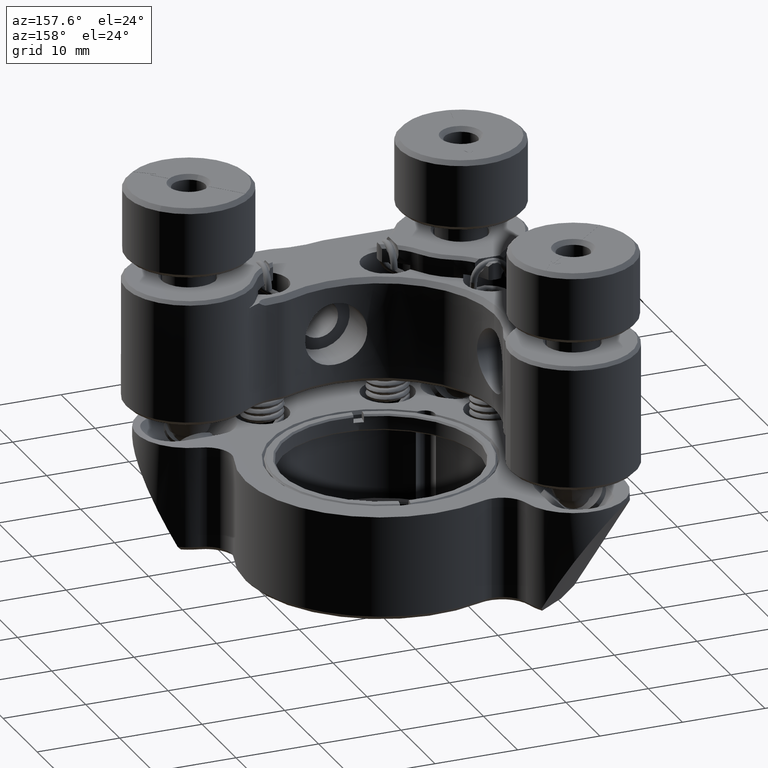
[diagram: clean part render]
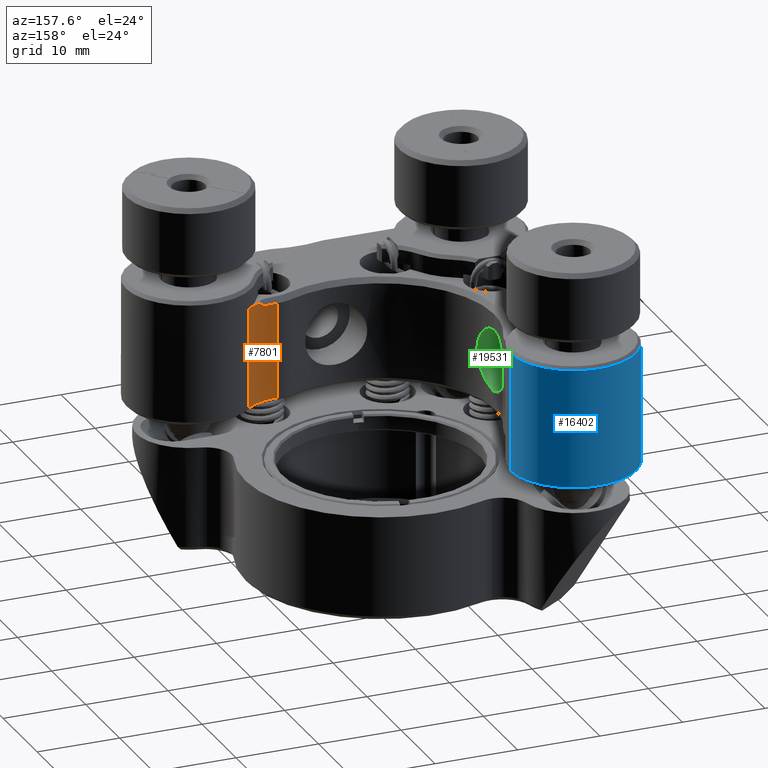
[diagram: same view with three faces highlighted in distinct colors, each labeled with its STEP entity id]
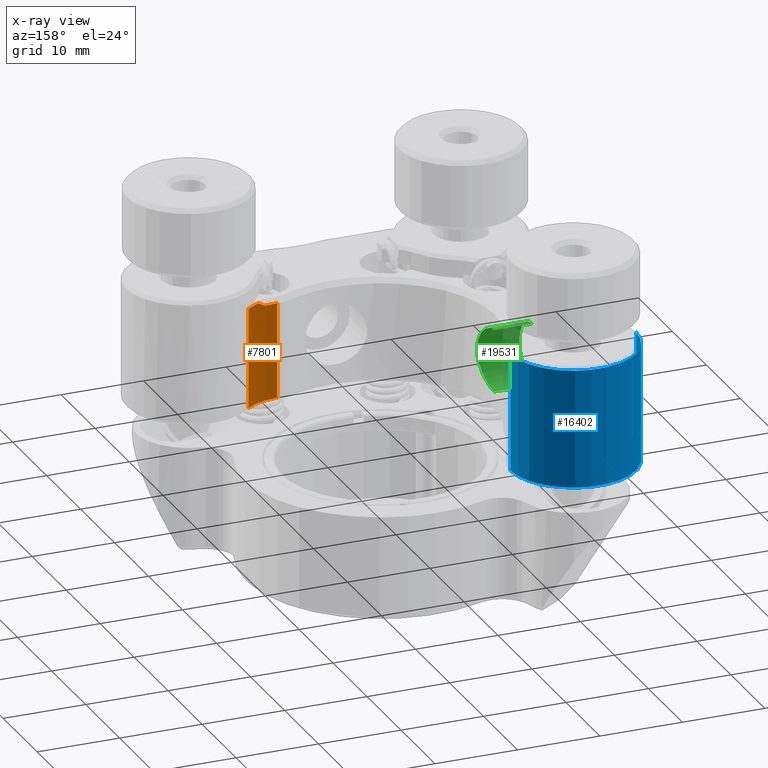
[diagram: x-ray of the same camera — body ghosted, the three highlighted faces saturated]
A machine part, auxiliary view with three faces highlighted in distinct colors.
The next image is the same camera in x-ray (body ghosted, the three faces saturated) — at least one of them is partly hidden behind the body in this view.
Their STEP definitions:

[orange] entity #7801 — the highlighted cylindrical surface (partial cylindrical patch) has radius 6.477 mm, axis along (-0, -0, -1).
#531 = ORIENTED_EDGE ( 'NONE', *, *, #2293, .T. ) ;
#927 = DIRECTION ( 'NONE',  ( -0.000000000000000000, -0.000000000000000000, -1.000000000000000000 ) ) ;
#1072 = CARTESIAN_POINT ( 'NONE',  ( 33.83400831399754338, 16.63267433515697391, 37.78957066029183665 ) ) ;
#1450 = DIRECTION ( 'NONE',  ( -0.000000000000000000, -0.000000000000000000, -1.000000000000000000 ) ) ;
#1459 = DIRECTION ( 'NONE',  ( 0.000000000000000000, 0.000000000000000000, -1.000000000000000000 ) ) ;
#1463 = DIRECTION ( 'NONE',  ( -0.000000000000000000, -0.000000000000000000, -1.000000000000000000 ) ) ;
#1623 = VERTEX_POINT ( 'NONE', #13404 ) ;
#2293 = EDGE_CURVE ( 'NONE', #10056, #10330, #20161, .T. ) ;
#2377 = CARTESIAN_POINT ( 'NONE',  ( 32.99325650581849345, 16.58172965181357128, 37.78943626234251951 ) ) ;
#2478 = DIRECTION ( 'NONE',  ( -0.000000000000000000, -0.000000000000000000, -1.000000000000000000 ) ) ;
#2707 = AXIS2_PLACEMENT_3D ( 'NONE', #16182, #1463, #8020 ) ;
#2723 = AXIS2_PLACEMENT_3D ( 'NONE', #13956, #2478, #2892 ) ;
#2733 = ORIENTED_EDGE ( 'NONE', *, *, #8548, .F. ) ;
#2892 = DIRECTION ( 'NONE',  ( 1.000000000000000000, 1.606969408037802636E-15, 0.000000000000000000 ) ) ;
#2956 = LINE ( 'NONE', #20891, #19553 ) ;
#3069 = CYLINDRICAL_SURFACE ( 'NONE', #2707, 6.477000000000000313 ) ;
#3996 = CARTESIAN_POINT ( 'NONE',  ( 34.67283066232313615, 16.80157547961682241, 37.88746097337087804 ) ) ;
#4166 = LINE ( 'NONE', #17166, #16397 ) ;
#4353 = EDGE_CURVE ( 'NONE', #1623, #12987, #12087, .T. ) ;
#5193 = CARTESIAN_POINT ( 'NONE',  ( 35.04893361705646271, 16.91249676500510901, 38.10671142949843926 ) ) ;
#5743 = VERTEX_POINT ( 'NONE', #14019 ) ;
#6740 = EDGE_CURVE ( 'NONE', #5743, #10330, #19334, .T. ) ;
#7017 = CARTESIAN_POINT ( 'NONE',  ( 34.35929069509769107, 16.72576714238197226, 37.78943626234250530 ) ) ;
#7330 = CARTESIAN_POINT ( 'NONE',  ( 33.41461196847051696, 16.59181766366834410, 37.78947166709499328 ) ) ;
#7509 = CARTESIAN_POINT ( 'NONE',  ( 32.99325650581840108, 16.58172965181357483, 26.18470909685332870 ) ) ;
#7628 = EDGE_CURVE ( 'NONE', #10542, #1623, #4166, .T. ) ;
#7794 = ORIENTED_EDGE ( 'NONE', *, *, #4353, .T. ) ;
#7801 = ADVANCED_FACE ( 'NONE', ( #19300 ), #3069, .F. ) ;
#8020 = DIRECTION ( 'NONE',  ( -1.000000000000000000, 0.000000000000000000, 0.000000000000000000 ) ) ;
#8548 = EDGE_CURVE ( 'NONE', #10542, #5743, #11956, .T. ) ;
#8929 = CARTESIAN_POINT ( 'NONE',  ( 33.20398938466283312, 16.58163037222188407, 37.79119208336707914 ) ) ;
#8947 = CARTESIAN_POINT ( 'NONE',  ( 35.21929640916775384, 16.97256353604522872, 38.23942419292598771 ) ) ;
#10056 = VERTEX_POINT ( 'NONE', #19236 ) ;
#10308 = EDGE_CURVE ( 'NONE', #10056, #12987, #2956, .T. ) ;
#10330 = VERTEX_POINT ( 'NONE', #17692 ) ;
#10542 = VERTEX_POINT ( 'NONE', #17773 ) ;
#10713 = AXIS2_PLACEMENT_3D ( 'NONE', #16483, #1459, #21212 ) ;
#11823 = CARTESIAN_POINT ( 'NONE',  ( 34.76924992690670280, 16.82834500219588492, 37.93781311106832277 ) ) ;
#11956 = CIRCLE ( 'NONE', #2723, 6.476999999999996760 ) ;
#12087 = CIRCLE ( 'NONE', #10713, 6.477000000000000313 ) ;
#12987 = VERTEX_POINT ( 'NONE', #7509 ) ;
#13196 = ORIENTED_EDGE ( 'NONE', *, *, #7628, .T. ) ;
#13404 = CARTESIAN_POINT ( 'NONE',  ( 37.07853345739273010, 18.03011444361588289, 26.18470909685332870 ) ) ;
#13461 = CARTESIAN_POINT ( 'NONE',  ( 35.38451088181182058, 17.03809650157964128, 38.37670909685328979 ) ) ;
#13956 = CARTESIAN_POINT ( 'NONE',  ( 32.99630792260517609, 23.05872893302826299, 38.37670909685328979 ) ) ;
#14019 = CARTESIAN_POINT ( 'NONE',  ( 35.38451088181182058, 17.03809650157964128, 38.37670909685328979 ) ) ;
#14544 = ORIENTED_EDGE ( 'NONE', *, *, #10308, .F. ) ;
#15380 = CARTESIAN_POINT ( 'NONE',  ( 34.24916935688629138, 16.70405606760937900, 37.78943626234250530 ) ) ;
#16182 = CARTESIAN_POINT ( 'NONE',  ( 32.99630792260517609, 23.05872893302826299, 40.91670909685328894 ) ) ;
#16363 = EDGE_LOOP ( 'NONE', ( #14544, #531, #21014, #2733, #13196, #7794 ) ) ;
#16397 = VECTOR ( 'NONE', #927, 1000.000000000000000 ) ;
#16483 = CARTESIAN_POINT ( 'NONE',  ( 32.99630792260517609, 23.05872893302826299, 26.18470909685332515 ) ) ;
#17166 = CARTESIAN_POINT ( 'NONE',  ( 37.07853345739273010, 18.03011444361588289, 40.91670909685328894 ) ) ;
#17692 = CARTESIAN_POINT ( 'NONE',  ( 34.24916935688629138, 16.70405606760937900, 37.78943626234250530 ) ) ;
#17773 = CARTESIAN_POINT ( 'NONE',  ( 37.07853345739285800, 18.03011444361573723, 38.37670909685328979 ) ) ;
#18393 = CARTESIAN_POINT ( 'NONE',  ( 34.46780143207901403, 16.75021051045814957, 37.81255311526849283 ) ) ;
#18796 = CARTESIAN_POINT ( 'NONE',  ( 34.24916935688629138, 16.70405606760937900, 37.78943626234250530 ) ) ;
#19236 = CARTESIAN_POINT ( 'NONE',  ( 32.99325650581849345, 16.58172965181357128, 37.78943626234251951 ) ) ;
#19300 = FACE_OUTER_BOUND ( 'NONE', #16363, .T. ) ;
#19334 = B_SPLINE_CURVE_WITH_KNOTS ( 'NONE', 3,
 ( #13461, #8947, #5193, #11823, #3996, #18393, #7017, #15380 ),
 .UNSPECIFIED., .F., .F.,
 ( 4, 2, 2, 4 ),
 ( 3.264040382788227533E-07, 0.0006724967419580260173, 0.001008581910917895732, 0.001344667079877765554 ),
 .UNSPECIFIED. ) ;
#19553 = VECTOR ( 'NONE', #1450, 1000.000000000000000 ) ;
#20161 = B_SPLINE_CURVE_WITH_KNOTS ( 'NONE', 3,
 ( #2377, #8929, #7330, #1072, #20412, #18796 ),
 .UNSPECIFIED., .F., .F.,
 ( 4, 2, 4 ),
 ( 0.000000000000000000, 0.0006319745323156299339, 0.001263949064631259868 ),
 .UNSPECIFIED. ) ;
#20412 = CARTESIAN_POINT ( 'NONE',  ( 34.04241664249252608, 16.66329354406170893, 37.79167142306224036 ) ) ;
#20891 = CARTESIAN_POINT ( 'NONE',  ( 32.99325650581840108, 16.58172965181357483, 40.91670909685328894 ) ) ;
#21014 = ORIENTED_EDGE ( 'NONE', *, *, #6740, .F. ) ;
#21212 = DIRECTION ( 'NONE',  ( -1.000000000000000000, 0.000000000000000000, 0.000000000000000000 ) ) ;

[blue] entity #16402 — the highlighted cylindrical surface (partial cylindrical patch) has radius 7.62 mm, axis along (-0, -0, -1).
#935 = ORIENTED_EDGE ( 'NONE', *, *, #969, .T. ) ;
#969 = EDGE_CURVE ( 'NONE', #9644, #2308, #8855, .T. ) ;
#1728 = VERTEX_POINT ( 'NONE', #15112 ) ;
#2308 = VERTEX_POINT ( 'NONE', #10640 ) ;
#2442 = VERTEX_POINT ( 'NONE', #9766 ) ;
#2811 = AXIS2_PLACEMENT_3D ( 'NONE', #9141, #17300, #2893 ) ;
#2893 = DIRECTION ( 'NONE',  ( -1.000000000000000000, -2.094416795142595372E-14, 0.000000000000000000 ) ) ;
#3049 = CARTESIAN_POINT ( 'NONE',  ( 16.48115173361366814, 45.13409739724845338, 40.53570909685331713 ) ) ;
#3145 = VERTEX_POINT ( 'NONE', #16954 ) ;
#3219 = EDGE_CURVE ( 'NONE', #3145, #9644, #6406, .T. ) ;
#3601 = ORIENTED_EDGE ( 'NONE', *, *, #12468, .T. ) ;
#3619 = LINE ( 'NONE', #5339, #9022 ) ;
#3695 = LINE ( 'NONE', #10243, #7804 ) ;
#3758 = CYLINDRICAL_SURFACE ( 'NONE', #18225, 7.620000000000023199 ) ;
#4160 = EDGE_CURVE ( 'NONE', #3145, #1728, #3619, .T. ) ;
#4339 = VECTOR ( 'NONE', #8341, 1000.000000000000000 ) ;
#4897 = EDGE_LOOP ( 'NONE', ( #17642, #935, #3601, #5286, #5921 ) ) ;
#5027 = AXIS2_PLACEMENT_3D ( 'NONE', #16887, #11810, #15155 ) ;
#5286 = ORIENTED_EDGE ( 'NONE', *, *, #6096, .F. ) ;
#5339 = CARTESIAN_POINT ( 'NONE',  ( 1.241151733613623298, 45.13409739724845338, 40.91670909685328894 ) ) ;
#5921 = ORIENTED_EDGE ( 'NONE', *, *, #4160, .F. ) ;
#6096 = EDGE_CURVE ( 'NONE', #1728, #2442, #3695, .T. ) ;
#6406 = CIRCLE ( 'NONE', #5027, 7.620000000000023199 ) ;
#7804 = VECTOR ( 'NONE', #8634, 1000.000000000000000 ) ;
#8341 = DIRECTION ( 'NONE',  ( -0.000000000000000000, -0.000000000000000000, -1.000000000000000000 ) ) ;
#8634 = DIRECTION ( 'NONE',  ( -0.000000000000000000, -0.000000000000000000, -1.000000000000000000 ) ) ;
#8696 = CARTESIAN_POINT ( 'NONE',  ( 8.861151733613645831, 45.13409739724845338, 40.91670909685328894 ) ) ;
#8855 = LINE ( 'NONE', #14665, #4339 ) ;
#9022 = VECTOR ( 'NONE', #16625, 1000.000000000000000 ) ;
#9141 = CARTESIAN_POINT ( 'NONE',  ( 8.861151733613645831, 45.13409739724845338, 26.18470909685332515 ) ) ;
#9644 = VERTEX_POINT ( 'NONE', #3049 ) ;
#9766 = CARTESIAN_POINT ( 'NONE',  ( 1.241151733613623964, 45.13409739724862391, 26.18470909685332870 ) ) ;
#10243 = CARTESIAN_POINT ( 'NONE',  ( 1.241151733613623964, 45.13409739724862391, 40.91670909685328894 ) ) ;
#10640 = CARTESIAN_POINT ( 'NONE',  ( 16.48115173361366814, 45.13409739724845338, 26.18470909685332515 ) ) ;
#11810 = DIRECTION ( 'NONE',  ( 0.000000000000000000, 0.000000000000000000, -1.000000000000000000 ) ) ;
#12057 = CIRCLE ( 'NONE', #2811, 7.620000000000023199 ) ;
#12468 = EDGE_CURVE ( 'NONE', #2308, #2442, #12057, .T. ) ;
#13629 = DIRECTION ( 'NONE',  ( -0.000000000000000000, -0.000000000000000000, -1.000000000000000000 ) ) ;
#14665 = CARTESIAN_POINT ( 'NONE',  ( 16.48115173361366814, 45.13409739724845338, 40.91670909685328894 ) ) ;
#15112 = CARTESIAN_POINT ( 'NONE',  ( 1.241151733613804486, 45.13409739724862391, 38.37670909685328979 ) ) ;
#15155 = DIRECTION ( 'NONE',  ( -1.000000000000000000, 0.000000000000000000, 0.000000000000000000 ) ) ;
#16402 = ADVANCED_FACE ( 'NONE', ( #18467 ), #3758, .T. ) ;
#16625 = DIRECTION ( 'NONE',  ( -0.000000000000000000, -0.000000000000000000, -1.000000000000000000 ) ) ;
#16887 = CARTESIAN_POINT ( 'NONE',  ( 8.861151733613645831, 45.13409739724845338, 40.53570909685331713 ) ) ;
#16954 = CARTESIAN_POINT ( 'NONE',  ( 1.241151733613623298, 45.13409739724845338, 40.53570909685331713 ) ) ;
#17300 = DIRECTION ( 'NONE',  ( -0.000000000000000000, -0.000000000000000000, 1.000000000000000000 ) ) ;
#17642 = ORIENTED_EDGE ( 'NONE', *, *, #3219, .T. ) ;
#18225 = AXIS2_PLACEMENT_3D ( 'NONE', #8696, #13629, #20175 ) ;
#18467 = FACE_OUTER_BOUND ( 'NONE', #4897, .T. ) ;
#20175 = DIRECTION ( 'NONE',  ( -1.000000000000000000, 0.000000000000000000, 0.000000000000000000 ) ) ;

[green] entity #19531 — the highlighted cylindrical surface (edge-blend (fillet) strip) has radius 3.7703 mm, axis along (1, 0, 0).
#152 = DIRECTION ( 'NONE',  ( 1.000000000000000000, -0.000000000000000000, 2.529488883022466436E-16 ) ) ;
#156 = VECTOR ( 'NONE', #1050, 1000.000000000000000 ) ;
#159 = EDGE_LOOP ( 'NONE', ( #3885, #18300, #13160, #10389 ) ) ;
#560 = CARTESIAN_POINT ( 'NONE',  ( 7.032351733613472433, 28.62409739724807878, 28.25639659685329974 ) ) ;
#764 = CARTESIAN_POINT ( 'NONE',  ( 7.032351733613471545, 28.62409739724807878, 32.02670909685329548 ) ) ;
#845 = CARTESIAN_POINT ( 'NONE',  ( 11.95120544272221963, 25.78424143924525325, 29.53465509129198452 ) ) ;
#1050 = DIRECTION ( 'NONE',  ( 1.000000000000000000, -0.000000000000000000, 2.529488883022466436E-16 ) ) ;
#1111 = CARTESIAN_POINT ( 'NONE',  ( 11.65515173361347045, 28.62409739724807878, 28.25639659685329619 ) ) ;
#1479 = EDGE_CURVE ( 'NONE', #4532, #17760, #7197, .T. ) ;
#1931 = CARTESIAN_POINT ( 'NONE',  ( 11.65515173361347045, 28.62409739724833102, 35.79702159685329121 ) ) ;
#2576 = CARTESIAN_POINT ( 'NONE',  ( 12.07964612869112386, 25.23676557117893537, 30.35295457798158125 ) ) ;
#2683 = CARTESIAN_POINT ( 'NONE',  ( 11.95114367017303714, 25.78444236758886987, 34.51917730670606943 ) ) ;
#2785 = CARTESIAN_POINT ( 'NONE',  ( 11.70760545342575121, 27.40395286996549373, 28.45074601941974635 ) ) ;
#3885 = ORIENTED_EDGE ( 'NONE', *, *, #14440, .F. ) ;
#4190 = CARTESIAN_POINT ( 'NONE',  ( 11.78474640620761349, 26.73172823763961858, 28.75642865181238506 ) ) ;
#4300 = CARTESIAN_POINT ( 'NONE',  ( 12.14928039269193505, 24.97535449877454639, 31.04504737753335419 ) ) ;
#4532 = VERTEX_POINT ( 'NONE', #15190 ) ;
#4617 = CARTESIAN_POINT ( 'NONE',  ( 11.70747208748272072, 27.40556582241435279, 35.60317102790236987 ) ) ;
#6009 = CARTESIAN_POINT ( 'NONE',  ( 11.78502487102315222, 26.72980978075761982, 35.29581777827588951 ) ) ;
#6108 = CARTESIAN_POINT ( 'NONE',  ( 12.12944475389338272, 25.04701481731430590, 33.24376359242678092 ) ) ;
#6219 = CARTESIAN_POINT ( 'NONE',  ( 11.84810275755820008, 26.32229047841289216, 35.02288700434547053 ) ) ;
#6852 = AXIS2_PLACEMENT_3D ( 'NONE', #764, #7340, #13871 ) ;
#7197 = LINE ( 'NONE', #20494, #156 ) ;
#7340 = DIRECTION ( 'NONE',  ( 1.000000000000000000, -0.000000000000000000, 2.529488883022466436E-16 ) ) ;
#7526 = CARTESIAN_POINT ( 'NONE',  ( 11.65515173361347934, 28.37368497113453714, 28.25639659685330329 ) ) ;
#7837 = CARTESIAN_POINT ( 'NONE',  ( 11.84801198557952162, 26.32275819757679969, 29.03010550052785632 ) ) ;
#7848 = VERTEX_POINT ( 'NONE', #560 ) ;
#8032 = CARTESIAN_POINT ( 'NONE',  ( 11.65515173361347045, 28.62409739724807878, 32.02670909685329548 ) ) ;
#8644 = VECTOR ( 'NONE', #11889, 1000.000000000000000 ) ;
#8906 = CARTESIAN_POINT ( 'NONE',  ( 11.65515173361347223, 28.62409739724807878, 28.25639659685329974 ) ) ;
#9135 = CARTESIAN_POINT ( 'NONE',  ( 12.18349776106356686, 24.85389332943942264, 31.77779980796344006 ) ) ;
#9244 = CARTESIAN_POINT ( 'NONE',  ( 11.65515173361347045, 28.62409739724807878, 28.25639659685329619 ) ) ;
#9349 = CARTESIAN_POINT ( 'NONE',  ( 12.17650792970922957, 24.87808867019809966, 31.53233769071761472 ) ) ;
#10145 = CARTESIAN_POINT ( 'NONE',  ( 11.65515173361347045, 28.37728729130533978, 35.79702159685331964 ) ) ;
#10259 = CARTESIAN_POINT ( 'NONE',  ( 11.66199990958393684, 28.12700478090469502, 35.77232539388995036 ) ) ;
#10389 = ORIENTED_EDGE ( 'NONE', *, *, #19384, .F. ) ;
#10743 = CARTESIAN_POINT ( 'NONE',  ( 12.05015950664266988, 25.35303405977897029, 30.13547268790675915 ) ) ;
#11061 = CARTESIAN_POINT ( 'NONE',  ( 11.98549353247409499, 25.62862685140368768, 29.72371393375845017 ) ) ;
#11156 = CARTESIAN_POINT ( 'NONE',  ( 11.68828176037311550, 27.64072864702635712, 35.67495914515548350 ) ) ;
#11251 = CYLINDRICAL_SURFACE ( 'NONE', #12082, 3.770312499999997513 ) ;
#11730 = EDGE_CURVE ( 'NONE', #20058, #17760, #12883, .T. ) ;
#11889 = DIRECTION ( 'NONE',  ( 1.000000000000000000, -0.000000000000000000, 2.529488883022466436E-16 ) ) ;
#12082 = AXIS2_PLACEMENT_3D ( 'NONE', #8032, #152, #13172 ) ;
#12775 = CARTESIAN_POINT ( 'NONE',  ( 11.75569226758316965, 26.95071035300516371, 35.41428565588041266 ) ) ;
#12883 = B_SPLINE_CURVE_WITH_KNOTS ( 'NONE', 3,
 ( #9244, #7526, #14369, #19106, #2785, #17296, #4190, #7837, #13954, #845, #11061, #10743, #2576, #19003, #4300, #9349, #9135, #17403, #19321, #17626, #6108, #20928, #15676, #20619, #2683, #20727, #6219, #6009, #12775, #4617, #11156, #10259, #10145, #16809 ),
 .UNSPECIFIED., .F., .F.,
 ( 4, 2, 2, 2, 2, 2, 2, 2, 2, 2, 2, 2, 2, 2, 2, 2, 4 ),
 ( 0.000000000000000000, 0.0007403120631249913682, 0.001480624126249982736, 0.002220936189374974213, 0.002961248252499965473, 0.003701560315624956733, 0.004441872378749948426, 0.005182184441874939686, 0.005922496504999930945, 0.006662808568124922205, 0.007403120631249913465, 0.008143432694374905592, 0.008883744757499896852, 0.009624056820624888112, 0.01036436888374987937, 0.01110468094687487063, 0.01184499300999986189 ),
 .UNSPECIFIED. ) ;
#13160 = ORIENTED_EDGE ( 'NONE', *, *, #11730, .F. ) ;
#13172 = DIRECTION ( 'NONE',  ( 4.601007147224025013E-16, 0.000000000000000000, -1.000000000000000000 ) ) ;
#13871 = DIRECTION ( 'NONE',  ( 2.300503573612012507E-16, 0.000000000000000000, -1.000000000000000000 ) ) ;
#13954 = CARTESIAN_POINT ( 'NONE',  ( 11.88264366585086584, 26.13012658376342046, 29.18853633778364554 ) ) ;
#14369 = CARTESIAN_POINT ( 'NONE',  ( 11.66199896030608762, 28.12769169257758506, 28.28109422892348235 ) ) ;
#14440 = EDGE_CURVE ( 'NONE', #4532, #7848, #16116, .T. ) ;
#15190 = CARTESIAN_POINT ( 'NONE',  ( 7.032351733613470657, 28.62409739724807878, 35.79702159685329121 ) ) ;
#15676 = CARTESIAN_POINT ( 'NONE',  ( 12.04977400880299143, 25.35467312396006889, 33.92041201066599854 ) ) ;
#16116 = CIRCLE ( 'NONE', #6852, 3.770312499999997513 ) ;
#16809 = CARTESIAN_POINT ( 'NONE',  ( 11.65515173361347045, 28.62409739724833102, 35.79702159685329121 ) ) ;
#16956 = LINE ( 'NONE', #8906, #8644 ) ;
#17296 = CARTESIAN_POINT ( 'NONE',  ( 11.75603342447262101, 26.94785068319109911, 28.64049269026631706 ) ) ;
#17403 = CARTESIAN_POINT ( 'NONE',  ( 12.18355955618697273, 24.85367718532052805, 32.27232255842407227 ) ) ;
#17626 = CARTESIAN_POINT ( 'NONE',  ( 12.14927351398751298, 24.97538223497075904, 33.00812709947737744 ) ) ;
#17712 = FACE_OUTER_BOUND ( 'NONE', #159, .T. ) ;
#17760 = VERTEX_POINT ( 'NONE', #1931 ) ;
#18300 = ORIENTED_EDGE ( 'NONE', *, *, #1479, .T. ) ;
#19003 = CARTESIAN_POINT ( 'NONE',  ( 12.12907999686009752, 25.04839127617765016, 30.80613676180558613 ) ) ;
#19106 = CARTESIAN_POINT ( 'NONE',  ( 11.68806307594817540, 27.64411108510788040, 28.37764398500558372 ) ) ;
#19321 = CARTESIAN_POINT ( 'NONE',  ( 12.17638974224352388, 24.87850772656194565, 32.52356083545992504 ) ) ;
#19384 = EDGE_CURVE ( 'NONE', #7848, #20058, #16956, .T. ) ;
#19531 = ADVANCED_FACE ( 'NONE', ( #17712 ), #11251, .F. ) ;
#20058 = VERTEX_POINT ( 'NONE', #1111 ) ;
#20494 = CARTESIAN_POINT ( 'NONE',  ( 11.65515173361346868, 28.62409739724807878, 35.79702159685329121 ) ) ;
#20619 = CARTESIAN_POINT ( 'NONE',  ( 11.98583967025217056, 25.62715553390197698, 34.32748837185366853 ) ) ;
#20727 = CARTESIAN_POINT ( 'NONE',  ( 11.88205672879936081, 26.13319935409689165, 34.86774155059630687 ) ) ;
#20928 = CARTESIAN_POINT ( 'NONE',  ( 12.07952340045979156, 25.23721981254858804, 33.70176182889533578 ) ) ;